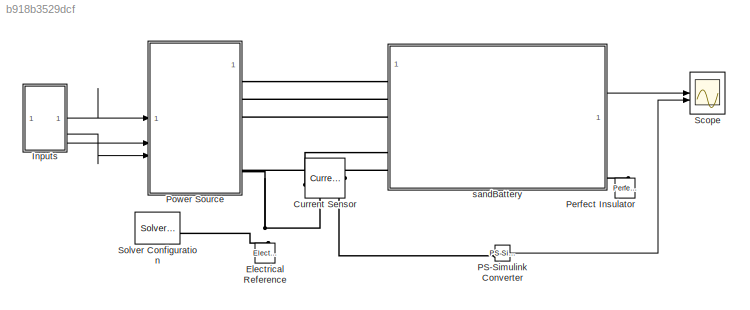
MODEL slx_b918b3529dcf
KIND model
CONFIG AbsTol = auto
CONFIG EnableMultiTasking = off
CONFIG FixedStep = auto
CONFIG MaxStep = auto
CONFIG MinStep = auto
CONFIG PreLoadFcn = SetupTestHarness
CONFIG RelTol = 1e-3
CONFIG SampleTimeConstraint = Unconstrained
CONFIG SolverName = VariableStepAuto
CONFIG StartTime = 0.0
CONFIG StopTime = 3600
BLOCK [Reference] Current Sensor  REF=fl_lib/Electrical/Electrical Sensors/Current Sensor
  SourceBlock = fl_lib/Electrical/Electrical Sensors/Current Sensor
  SourceType = Current Sensor
BLOCK [Reference] Electrical Reference  REF=fl_lib/Electrical/Electrical Elements/Electrical Reference
  NameLocation = right
  SourceBlock = fl_lib/Electrical/Electrical Elements/Electrical Reference
  SourceType = Electrical Reference
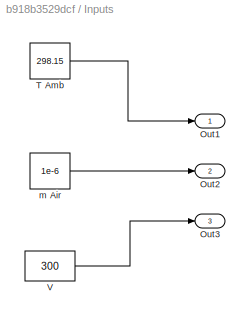
BLOCK [SubSystem] Inputs
BLOCK [Outport] Inputs/Out1
BLOCK [Outport] Inputs/Out2
  Port = 2
BLOCK [Outport] Inputs/Out3
  Port = 3
BLOCK [Constant] Inputs/T Amb
  Value = 298.15
BLOCK [Constant] Inputs/V 
  Value = 300
BLOCK [Constant] Inputs/m Air
  Value = 1e-6
BLOCK [Reference] PS-Simulink Converter  REF=nesl_utility/PS-Simulink
Converter
  SourceBlock = nesl_utility/PS-Simulink\nConverter
  SourceType = PS-Simulink\nConverter
BLOCK [Reference] Perfect Insulator  REF=fl_lib/Thermal/Thermal Elements/Perfect Insulator
  NameLocation = right
  SourceBlock = fl_lib/Thermal/Thermal Elements/Perfect Insulator
  SourceType = Perfect Insulator
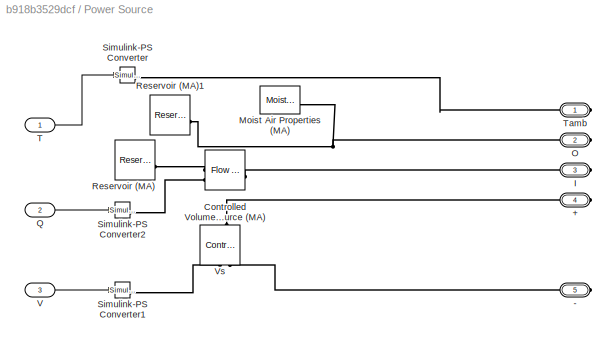
BLOCK [SubSystem] Power Source
BLOCK [PMIOPort] Power Source/+
  Port = 4
  Side = Right
BLOCK [PMIOPort] Power Source/-
  Port = 5
  Side = Right
BLOCK [Reference] Power Source/Controlled Volumetric Flow Rate Source (MA)  REF=fl_lib/Moist Air/Sources/Flow Rate Source
(MA)
  SourceBlock = fl_lib/Moist Air/Sources/Flow Rate Source\n(MA)
  SourceType = Flow Rate Source\n(MA)
BLOCK [PMIOPort] Power Source/I
  Port = 3
  Side = Right
BLOCK [Reference] Power Source/Moist Air Properties (MA)  REF=fl_lib/Moist Air/Utilities/Moist Air Properties
(MA)
  SourceBlock = fl_lib/Moist Air/Utilities/Moist Air Properties\n(MA)
  SourceType = Moist Air Properties\n(MA)
BLOCK [PMIOPort] Power Source/O
  Port = 2
  Side = Right
BLOCK [Inport] Power Source/Q
  Port = 2
BLOCK [Reference] Power Source/Reservoir (MA)  REF=fl_lib/Moist Air/Elements/Reservoir (MA)
  SourceBlock = fl_lib/Moist Air/Elements/Reservoir (MA)
  SourceType = Reservoir (MA)
BLOCK [Reference] Power Source/Reservoir (MA)1  REF=fl_lib/Moist Air/Elements/Reservoir (MA)
  SourceBlock = fl_lib/Moist Air/Elements/Reservoir (MA)
  SourceType = Reservoir (MA)
BLOCK [Reference] Power Source/Simulink-PS Converter  REF=nesl_utility/Simulink-PS
Converter
  SourceBlock = nesl_utility/Simulink-PS\nConverter
  SourceType = Simulink-PS\nConverter
BLOCK [Reference] Power Source/Simulink-PS Converter1  REF=nesl_utility/Simulink-PS
Converter
  SourceBlock = nesl_utility/Simulink-PS\nConverter
  SourceType = Simulink-PS\nConverter
BLOCK [Reference] Power Source/Simulink-PS Converter2  REF=nesl_utility/Simulink-PS
Converter
  SourceBlock = nesl_utility/Simulink-PS\nConverter
  SourceType = Simulink-PS\nConverter
BLOCK [Inport] Power Source/T
BLOCK [PMIOPort] Power Source/Tamb
  Side = Right
BLOCK [Inport] Power Source/V
  Port = 3
BLOCK [Reference] Power Source/Vs  REF=fl_lib/Electrical/Electrical Sources/Controlled Voltage
Source
  NameLocation = right
  SourceBlock = fl_lib/Electrical/Electrical Sources/Controlled Voltage\nSource
  SourceType = Controlled Voltage\nSource
BLOCK [Scope] Scope
  Floating = off
  NumInputPorts = 2
  ScopeSpecificationString = Simulink.scopes.TimeScopeBlockCfg('CurrentConfiguration', extmgr.ConfigurationSet(extmgr.Configuration('Core','General UI',true),extmgr.Configuration('Core','Source UI',true),extmgr.Configuration('Sources','WiredSimulink',true),extmgr.Configuration('Visuals','Time Domain',true,'SerializedDisplays',{struct('MinYLimReal','-285961371.67023','MaxYLimReal','2573652244.24777','YLabelReal','','MinYLimMag...<+1465ch>
BLOCK [Reference] Solver Configuration  REF=nesl_utility/Solver
Configuration
  SourceBlock = nesl_utility/Solver\nConfiguration
  SourceType = Solver\nConfiguration
BLOCK [SubSystem] sandBattery
  PortSchema = {"entries":[{"content":{"sides":[{"content":{"connectorIds":["LConn1","LConn2","LConn3","LConn6","LConn5"]},"type":"ConnectorPlacement.EquallySpacedRectSide","uuid":"f91b6796-1de5-48dc-bc2f-817ca8ae0937"},{"content":{"connectorIds":["Out1","LConn4"],"side":"RIGHT"},"type":"ConnectorPlacement.EquallySpacedRectSide","uuid":"be309142-d4d2-4aef-9848-06a3145ed3f4"},{"content":{"side":"TOP"},"type":"Con...<+270ch>
  ReferencedSubsystem = sandBattery
LINE Inputs/T Amb:1 -> Inputs/Out1:1
LINE Inputs/V :1 -> Inputs/Out3:1
LINE Inputs/m Air:1 -> Inputs/Out2:1
LINE Inputs:1 -> Power Source:1
LINE Inputs:2 -> Power Source:2
LINE Inputs:3 -> Power Source:3
LINE PS-Simulink Converter:1 -> Scope:2
LINE Power Source/Q:1 -> Power Source/Simulink-PS Converter2:1
LINE Power Source/T:1 -> Power Source/Simulink-PS Converter:1
LINE Power Source/V:1 -> Power Source/Simulink-PS Converter1:1
LINE sandBattery:1 -> Scope:1
PLINE Current Sensor:LConn1 -- sandBattery:LConn5
PLINE Current Sensor:RConn1 -- PS-Simulink Converter:LConn1
PNET net1: Current Sensor:RConn2 -- Electrical Reference:LConn1 -- Power Source:RConn5 -- Solver Configuration:RConn1
PLINE Perfect Insulator:LConn1 -- sandBattery:LConn4
PLINE Power Source/+:RConn1 -- Power Source/Vs:LConn1
PLINE Power Source/-:RConn1 -- Power Source/Vs:RConn2
PLINE Power Source/Controlled Volumetric Flow Rate Source (MA):LConn1 -- Power Source/Reservoir (MA):LConn1
PLINE Power Source/Controlled Volumetric Flow Rate Source (MA):LConn2 -- Power Source/Simulink-PS Converter2:RConn1
PLINE Power Source/Controlled Volumetric Flow Rate Source (MA):RConn1 -- Power Source/I:RConn1
PNET net2: Power Source/Moist Air Properties (MA):RConn1 -- Power Source/O:RConn1 -- Power Source/Reservoir (MA)1:LConn1
PLINE Power Source/Simulink-PS Converter1:RConn1 -- Power Source/Vs:RConn1
PLINE Power Source/Simulink-PS Converter:RConn1 -- Power Source/Tamb:RConn1
PLINE Power Source:RConn1 -- sandBattery:LConn1
PLINE Power Source:RConn2 -- sandBattery:LConn2
PLINE Power Source:RConn3 -- sandBattery:LConn3
PLINE Power Source:RConn4 -- sandBattery:LConn6
note: PNET lines group multi-terminal physical nets as a canonical sorted terminal list (undirected conserving connections); 2-terminal nets keep the pairwise PLINE form
